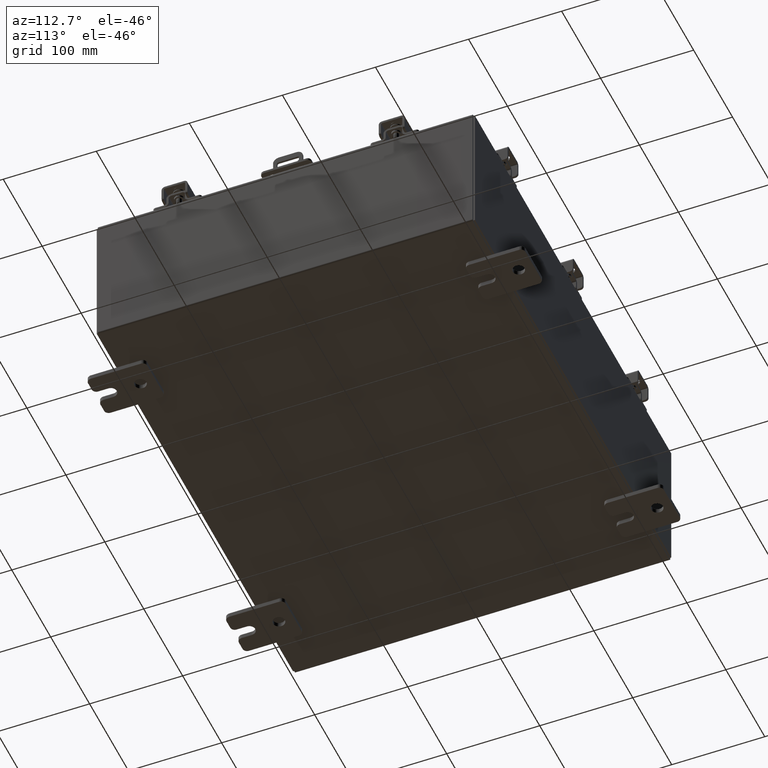
[diagram: clean part render]
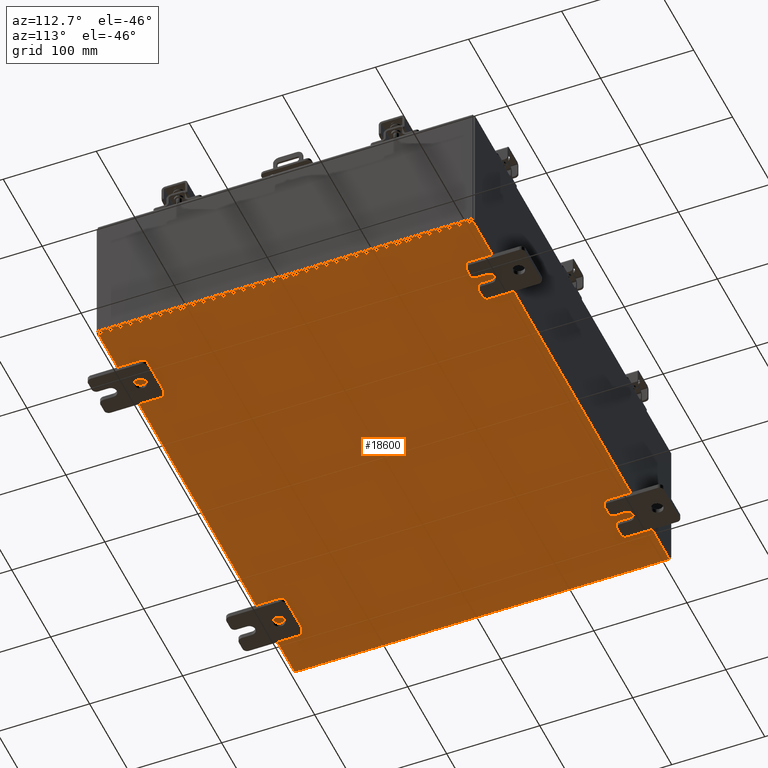
[diagram: same view with one face highlighted and labeled with its STEP entity id]
A machine part, auxiliary view. The second image highlights one B-rep face of the part: STEP entity #18600.
In plain terms, the highlighted planar face has unit normal (0, 0, -1).
Its self-contained STEP definition (entity closure, byte-faithful):
#27 = VECTOR ( 'NONE', #7084, 39.37007874015748100 ) ;
#72 = CARTESIAN_POINT ( 'NONE',  ( 9.912300000000000100, -7.925300000000000000, -0.07470000000000000300 ) ) ;
#513 = EDGE_CURVE ( 'NONE', #4034, #19260, #17070, .T. ) ;
#821 = CARTESIAN_POINT ( 'NONE',  ( -10.00000000000000000, -7.925300000000000000, -0.07470000000000000300 ) ) ;
#1002 = VECTOR ( 'NONE', #4971, 39.37007874015748100 ) ;
#3721 = AXIS2_PLACEMENT_3D ( 'NONE', #4364, #5935, #16910 ) ;
#4034 = VERTEX_POINT ( 'NONE', #9146 ) ;
#4216 = LINE ( 'NONE', #821, #27 ) ;
#4364 = CARTESIAN_POINT ( 'NONE',  ( 0.0000000000000000000, 0.0000000000000000000, -0.07470000000000000300 ) ) ;
#4971 = DIRECTION ( 'NONE',  ( -0.0000000000000000000, -1.000000000000000000, -0.0000000000000000000 ) ) ;
#5015 = ORIENTED_EDGE ( 'NONE', *, *, #8921, .F. ) ;
#5430 = ORIENTED_EDGE ( 'NONE', *, *, #513, .T. ) ;
#5935 = DIRECTION ( 'NONE',  ( 0.0000000000000000000, 0.0000000000000000000, -1.000000000000000000 ) ) ;
#6492 = ORIENTED_EDGE ( 'NONE', *, *, #12468, .F. ) ;
#7084 = DIRECTION ( 'NONE',  ( 1.000000000000000000, 0.0000000000000000000, 0.0000000000000000000 ) ) ;
#8536 = CARTESIAN_POINT ( 'NONE',  ( -10.00000000000000000, 7.925300000000000000, -0.07470000000000000300 ) ) ;
#8691 = VECTOR ( 'NONE', #12037, 39.37007874015748100 ) ;
#8921 = EDGE_CURVE ( 'NONE', #4034, #12175, #4216, .T. ) ;
#9146 = CARTESIAN_POINT ( 'NONE',  ( -9.912300000000000100, -7.925300000000000000, -0.07469999999999994700 ) ) ;
#9306 = EDGE_CURVE ( 'NONE', #13718, #12175, #9327, .T. ) ;
#9327 = LINE ( 'NONE', #14368, #1002 ) ;
#10129 = DIRECTION ( 'NONE',  ( -1.000000000000000000, -0.0000000000000000000, -0.0000000000000000000 ) ) ;
#11123 = FACE_OUTER_BOUND ( 'NONE', #12398, .T. ) ;
#11770 = CARTESIAN_POINT ( 'NONE',  ( 9.912300000000000100, 7.925300000000000000, -0.07469999999999994700 ) ) ;
#12037 = DIRECTION ( 'NONE',  ( -0.0000000000000000000, 1.000000000000000000, -0.0000000000000000000 ) ) ;
#12175 = VERTEX_POINT ( 'NONE', #72 ) ;
#12398 = EDGE_LOOP ( 'NONE', ( #5015, #5430, #6492, #17193 ) ) ;
#12468 = EDGE_CURVE ( 'NONE', #13718, #19260, #12727, .T. ) ;
#12727 = LINE ( 'NONE', #8536, #20149 ) ;
#13718 = VERTEX_POINT ( 'NONE', #11770 ) ;
#13727 = PLANE ( 'NONE',  #3721 ) ;
#14368 = CARTESIAN_POINT ( 'NONE',  ( 9.912300000000000100, 7.925300000000000000, -0.07469999999999994700 ) ) ;
#16910 = DIRECTION ( 'NONE',  ( -1.000000000000000000, 0.0000000000000000000, -0.0000000000000000000 ) ) ;
#17070 = LINE ( 'NONE', #19883, #8691 ) ;
#17193 = ORIENTED_EDGE ( 'NONE', *, *, #9306, .T. ) ;
#17300 = CARTESIAN_POINT ( 'NONE',  ( -9.912300000000000100, 7.925300000000000000, -0.07470000000000000300 ) ) ;
#18600 = ADVANCED_FACE ( 'NONE', ( #11123 ), #13727, .T. ) ;
#19260 = VERTEX_POINT ( 'NONE', #17300 ) ;
#19883 = CARTESIAN_POINT ( 'NONE',  ( -9.912300000000000100, -7.925300000000000000, -0.07469999999999994700 ) ) ;
#20149 = VECTOR ( 'NONE', #10129, 39.37007874015748100 ) ;